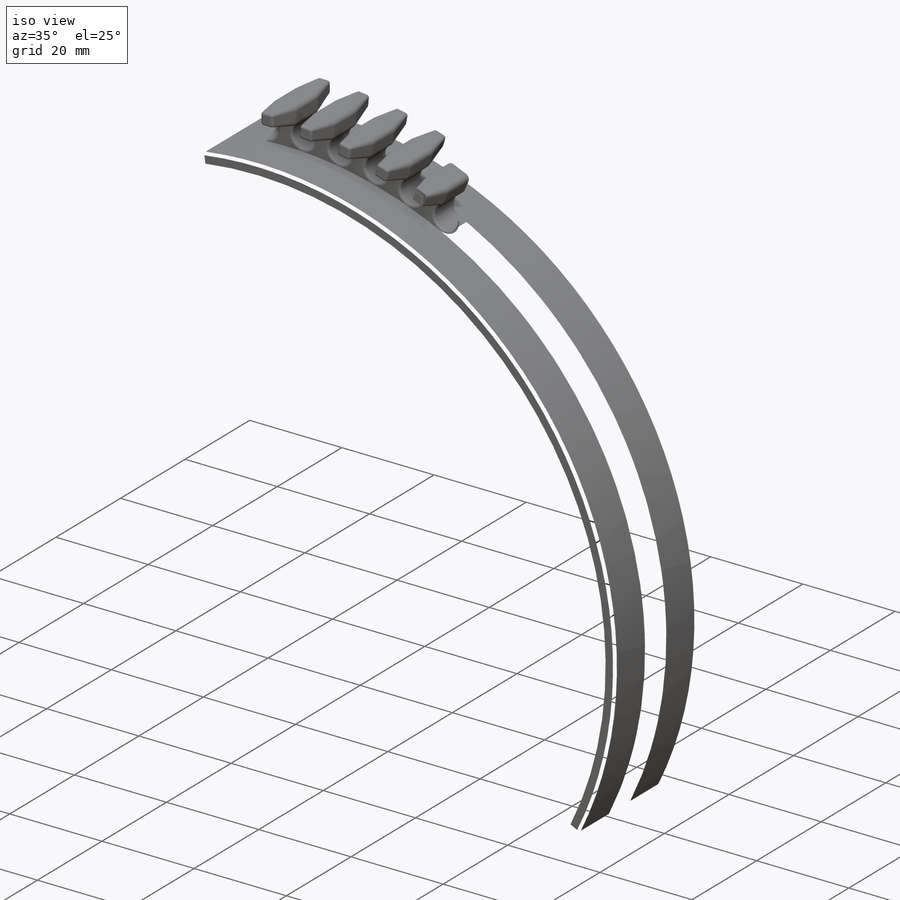
[diagram: iso view]
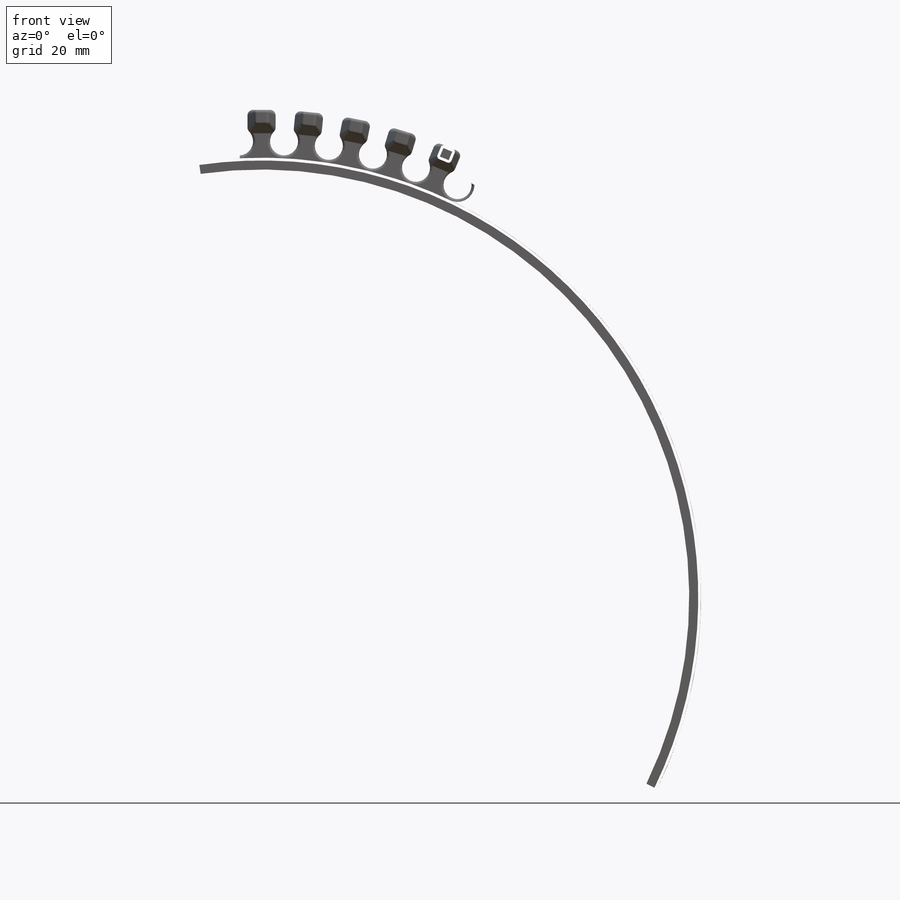
[diagram: front view]
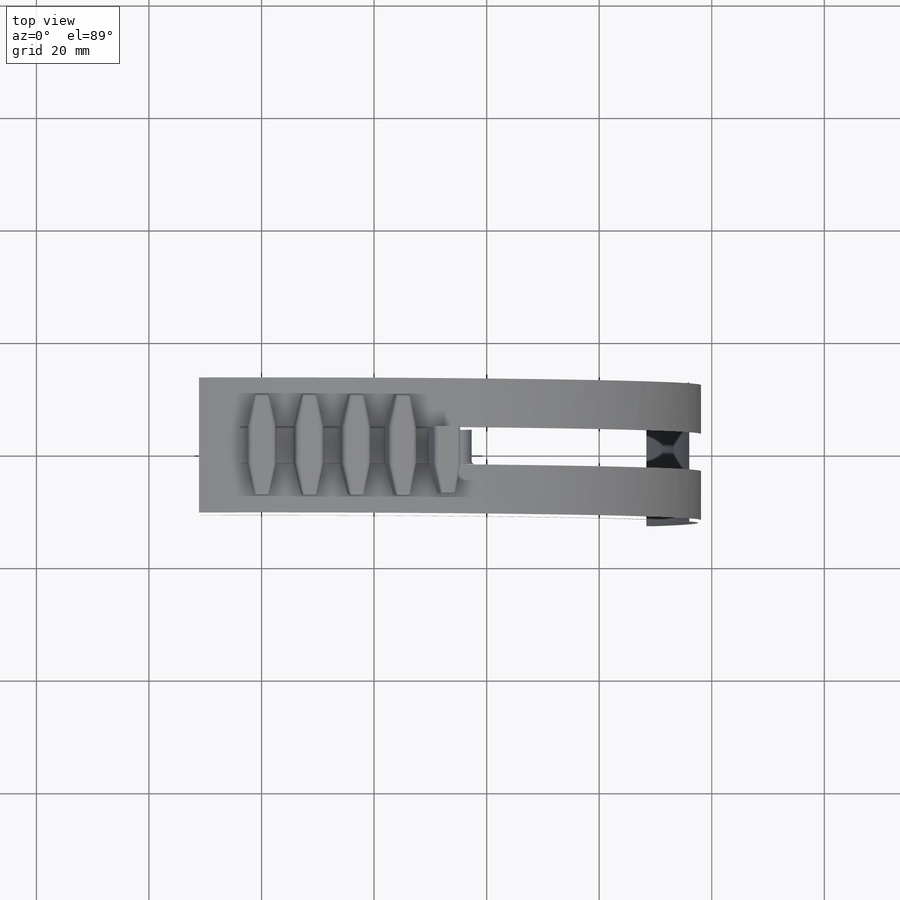
[diagram: top view]
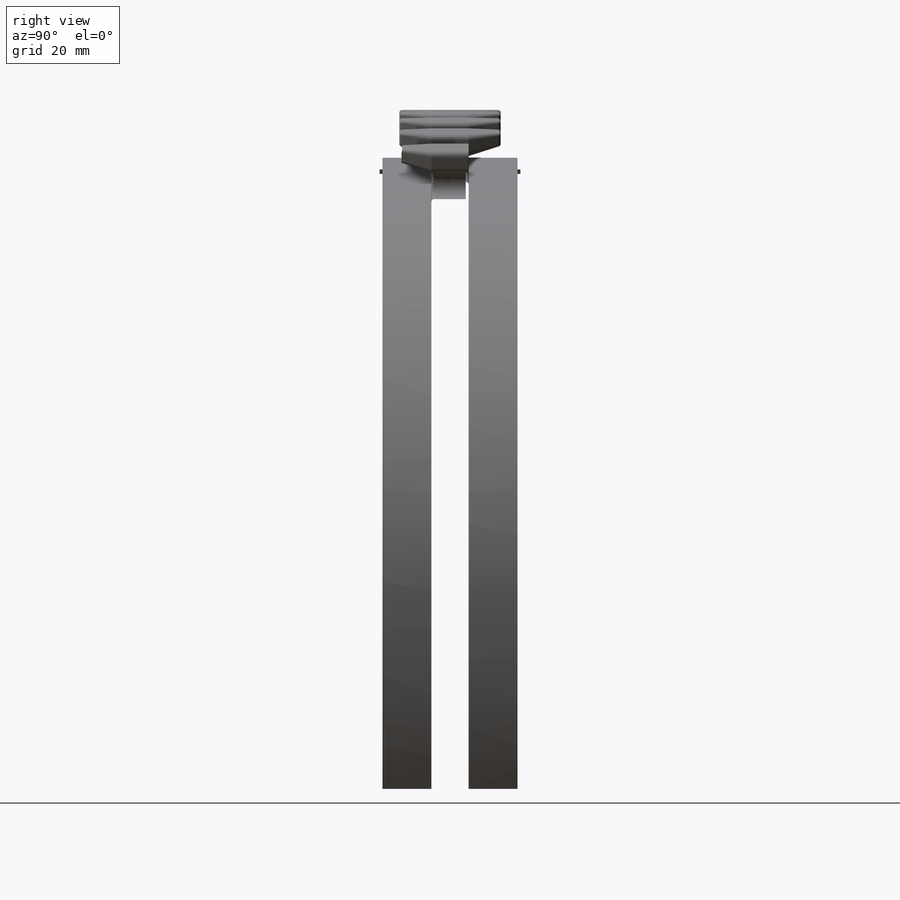
[diagram: right view]
SOLIDWORKS PART (.sldprt)
format: sldprt  version: not decoded by parser v0  size: 6,183,936 bytes
history: native  units: mm
features: sketch x5, fillet x3, extrude x2, mirror x2, material x1, plane x1, pattern_circular x1 (+11 scaffold rows collapsed)
feature tree (26):
  scaffold x11  (default folders/planes/origin — collapsed)
  material  "Material <not specified>"
  sketch  "Sketch1"  dims[c1.D1=157.2mm c1.D2=5.0mm c1.D4=152.0mm c1.D3=~61.964914mm c2.D3=~5.651865deg c2.D5=1.5mm c2.D6=8.0mm]
  extrude  "Boss-Extrude1"  Depth=3.3mm
  mirror  "Mirror1"
  fillet  "Fillet1"  Radius=1mm
  sketch  "Sketch2"
  plane  "Plane1"  Offset=5.7mm
  sketch  "Sketch3"  dims[D2=0.5mm D1=2.5mm]
  sketch  "Sketch4"
  fillet  "Fillet2"  Radius=0.5mm
  mirror  "Mirror2"
  pattern_circular  "CirPattern1"  Count=21 Angle=5.651865deg
  sketch  "Sketch6"  dims[D1=7.3mm]
  extrude  "Boss-Extrude2"  Depth=25mm
  fillet  "Fillet3"  Radius=0.5mm
decode coverage: 9 of 13 modeling features carry decoded parameters
note: ~ marks probable driven/reference dimensions
note: suppression state not decoded; provenance and decode notes live in map.json
